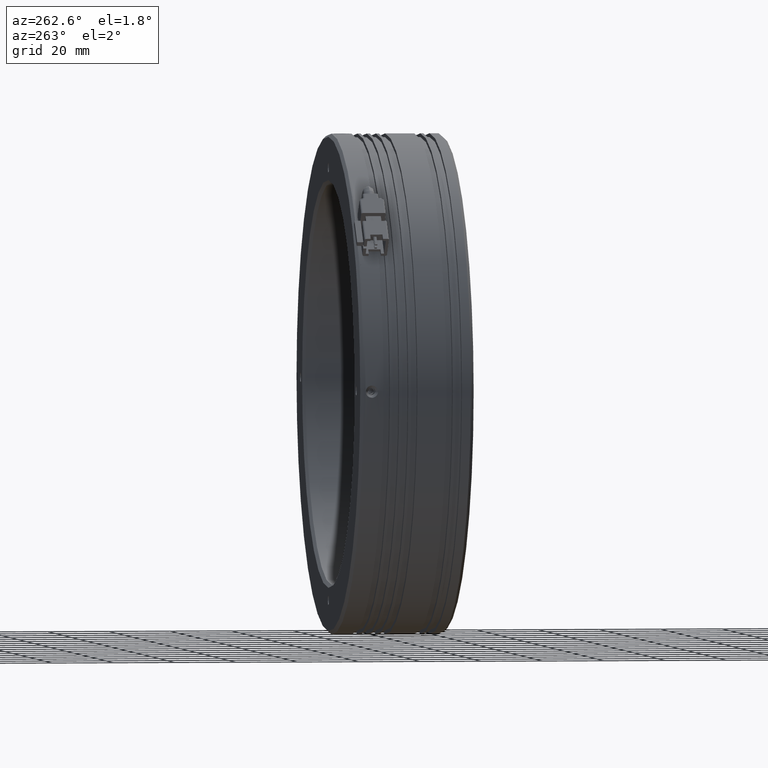
[diagram: clean part render]
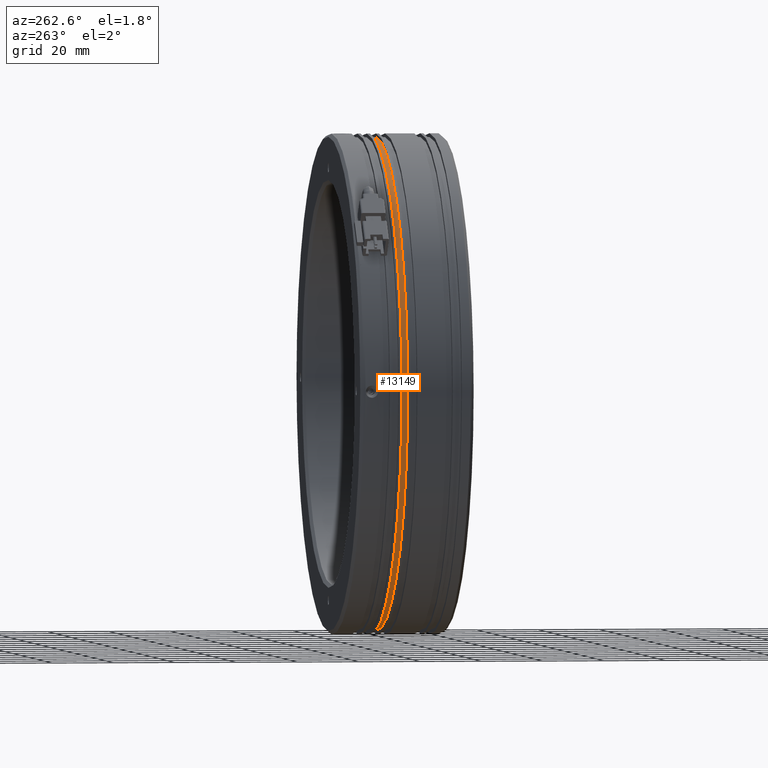
[diagram: same view with one face highlighted and labeled with its STEP entity id]
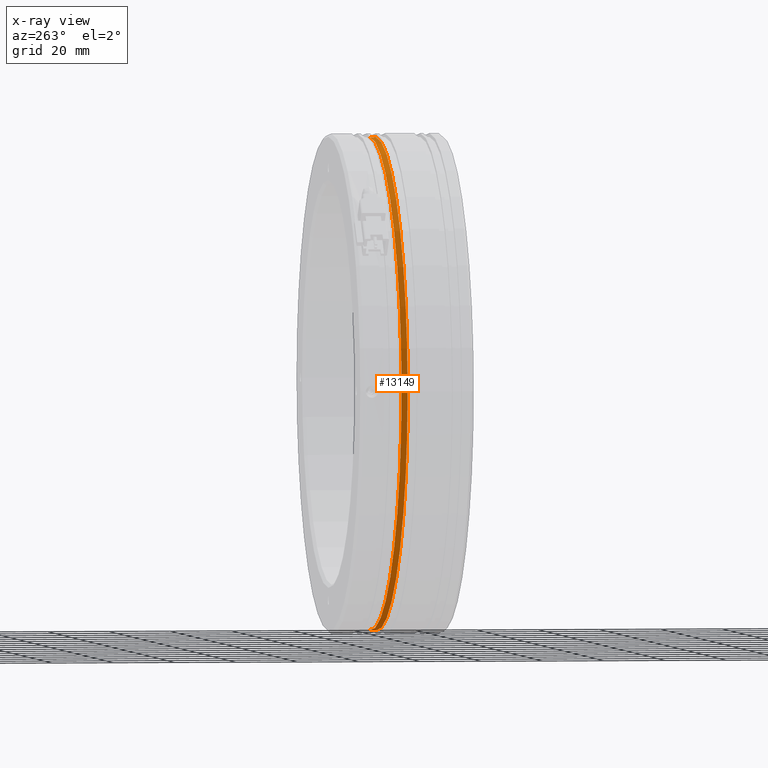
[diagram: x-ray of the same camera — body ghosted, the highlighted face saturated]
A machine part, auxiliary view. The second image highlights one B-rep face of the part: STEP entity #13149.
The next image is the same camera in x-ray: the body ghosted, the highlighted face saturated — about 0% of this face is hidden behind the body in this view.
In plain terms, the highlighted cylindrical surface (partial cylindrical patch) has radius 79.8 mm, axis along (-0, -1, -0).
Its self-contained STEP definition (entity closure, byte-faithful):
#121 = CARTESIAN_POINT ( 'NONE',  ( -9.785022266880025300, -37.73097191106735000, 79.79999999999992600 ) ) ;
#367 = ORIENTED_EDGE ( 'NONE', *, *, #374, .T. ) ;
#374 = EDGE_CURVE ( 'NONE', #4577, #5213, #11329, .T. ) ;
#519 = DIRECTION ( 'NONE',  ( -0.0000000000000000000, -1.000000000000000000, -0.0000000000000000000 ) ) ;
#580 = EDGE_CURVE ( 'NONE', #5454, #4577, #5083, .T. ) ;
#695 = DIRECTION ( 'NONE',  ( 0.0000000000000000000, 0.0000000000000000000, -1.000000000000000000 ) ) ;
#801 = CARTESIAN_POINT ( 'NONE',  ( -9.785022266880036000, 14.37111437184006300, -79.79999999999992600 ) ) ;
#1434 = DIRECTION ( 'NONE',  ( 0.0000000000000000000, 0.0000000000000000000, -1.000000000000000000 ) ) ;
#1680 = CYLINDRICAL_SURFACE ( 'NONE', #7848, 79.79999999999992600 ) ;
#2160 = EDGE_CURVE ( 'NONE', #8300, #5213, #8202, .T. ) ;
#2345 = DIRECTION ( 'NONE',  ( 0.0000000000000000000, 1.000000000000000000, 0.0000000000000000000 ) ) ;
#3378 = CARTESIAN_POINT ( 'NONE',  ( -9.785022266880025300, 14.37111437184006300, 79.79999999999992600 ) ) ;
#3823 = EDGE_LOOP ( 'NONE', ( #8006, #4593, #4273, #367 ) ) ;
#4273 = ORIENTED_EDGE ( 'NONE', *, *, #580, .T. ) ;
#4577 = VERTEX_POINT ( 'NONE', #8352 ) ;
#4593 = ORIENTED_EDGE ( 'NONE', *, *, #10990, .T. ) ;
#5083 = LINE ( 'NONE', #8849, #6314 ) ;
#5213 = VERTEX_POINT ( 'NONE', #11725 ) ;
#5372 = FACE_OUTER_BOUND ( 'NONE', #3823, .T. ) ;
#5376 = CARTESIAN_POINT ( 'NONE',  ( -9.785022266880036000, 12.37111437184005400, 0.0000000000000000000 ) ) ;
#5378 = CARTESIAN_POINT ( 'NONE',  ( -9.785022266880036000, -37.73097191106735000, 0.0000000000000000000 ) ) ;
#5454 = VERTEX_POINT ( 'NONE', #801 ) ;
#5620 = CIRCLE ( 'NONE', #8743, 79.79999999999992600 ) ;
#5939 = VECTOR ( 'NONE', #519, 1000.000000000000000 ) ;
#6314 = VECTOR ( 'NONE', #13141, 1000.000000000000000 ) ;
#6598 = AXIS2_PLACEMENT_3D ( 'NONE', #5376, #2345, #1434 ) ;
#6780 = DIRECTION ( 'NONE',  ( -0.0000000000000000000, -1.000000000000000000, -0.0000000000000000000 ) ) ;
#7848 = AXIS2_PLACEMENT_3D ( 'NONE', #5378, #12380, #11409 ) ;
#8006 = ORIENTED_EDGE ( 'NONE', *, *, #2160, .F. ) ;
#8202 = LINE ( 'NONE', #121, #5939 ) ;
#8300 = VERTEX_POINT ( 'NONE', #3378 ) ;
#8352 = CARTESIAN_POINT ( 'NONE',  ( -9.785022266880036000, 12.37111437184005400, -79.79999999999992600 ) ) ;
#8743 = AXIS2_PLACEMENT_3D ( 'NONE', #12827, #6780, #695 ) ;
#8849 = CARTESIAN_POINT ( 'NONE',  ( -9.785022266880036000, -37.73097191106735000, -79.79999999999992600 ) ) ;
#10990 = EDGE_CURVE ( 'NONE', #8300, #5454, #5620, .T. ) ;
#11329 = CIRCLE ( 'NONE', #6598, 79.79999999999992600 ) ;
#11409 = DIRECTION ( 'NONE',  ( 0.0000000000000000000, 0.0000000000000000000, -1.000000000000000000 ) ) ;
#11725 = CARTESIAN_POINT ( 'NONE',  ( -9.785022266880025300, 12.37111437184005400, 79.79999999999992600 ) ) ;
#12380 = DIRECTION ( 'NONE',  ( -0.0000000000000000000, -1.000000000000000000, -0.0000000000000000000 ) ) ;
#12827 = CARTESIAN_POINT ( 'NONE',  ( -9.785022266880036000, 14.37111437184006300, 0.0000000000000000000 ) ) ;
#13141 = DIRECTION ( 'NONE',  ( -0.0000000000000000000, -1.000000000000000000, -0.0000000000000000000 ) ) ;
#13149 = ADVANCED_FACE ( 'NONE', ( #5372 ), #1680, .T. ) ;